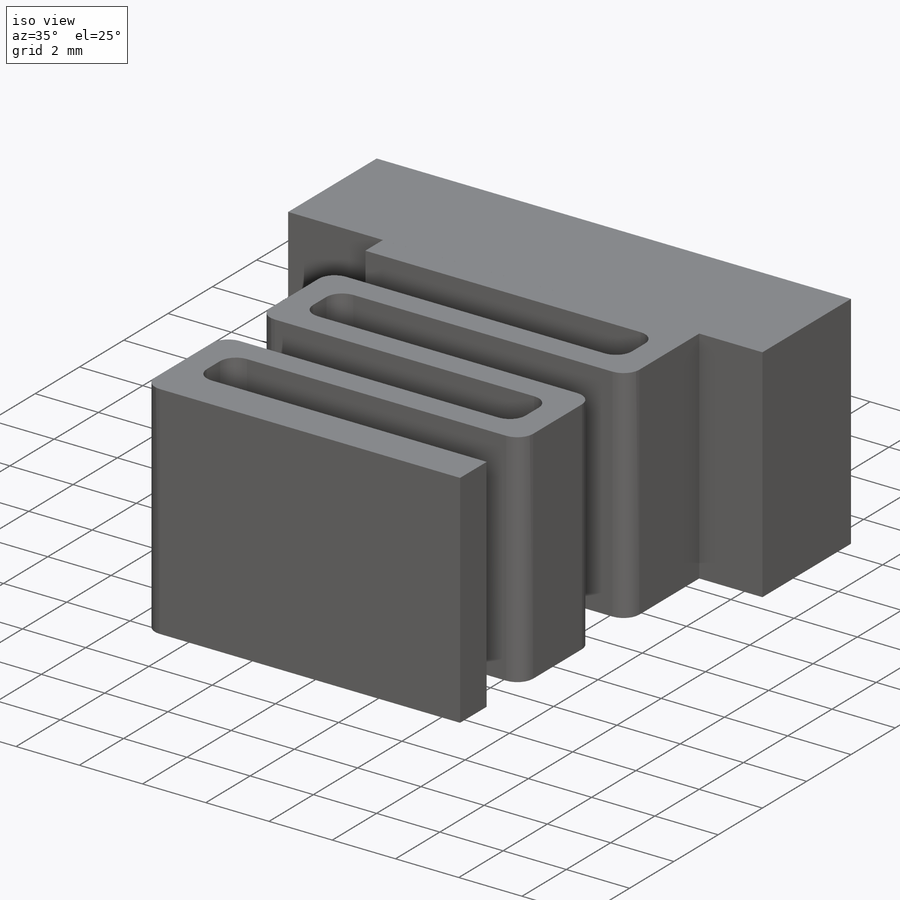
[diagram: iso view]
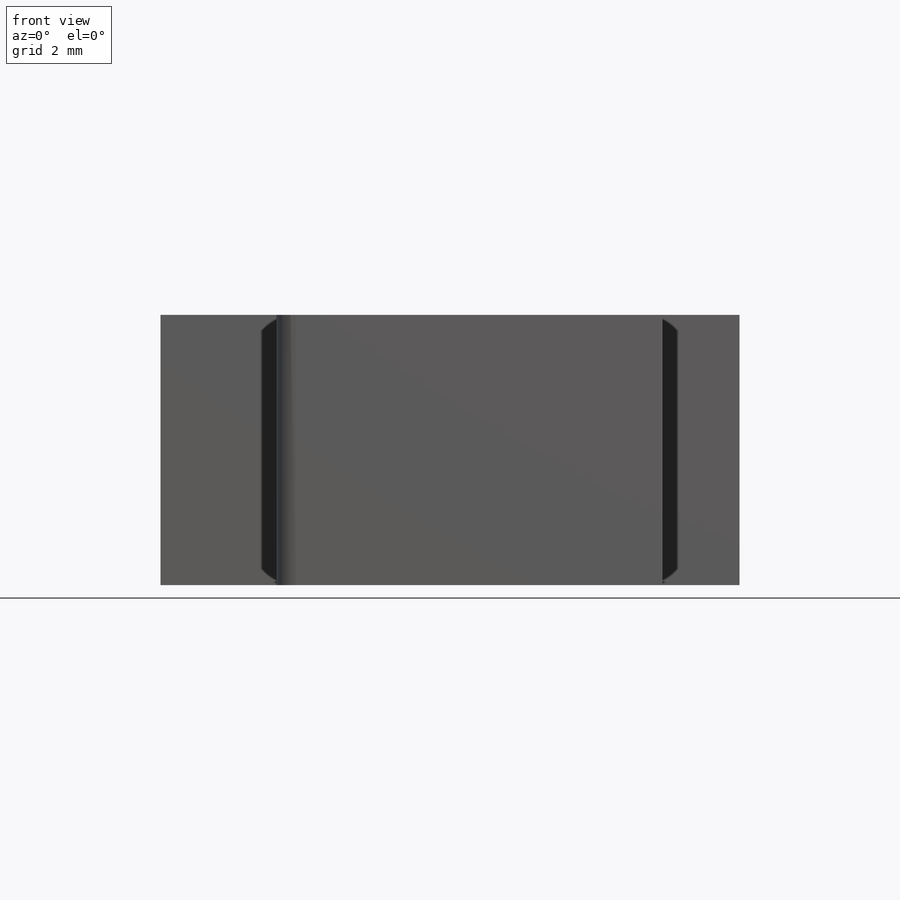
[diagram: front view]
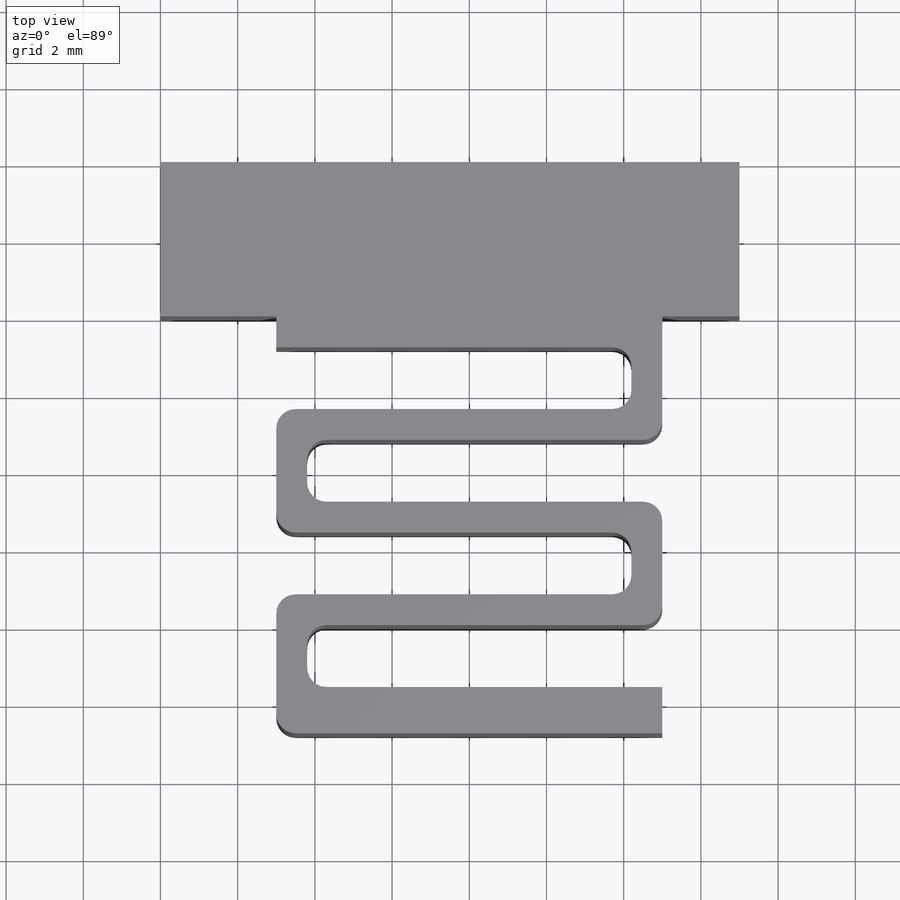
[diagram: top view]
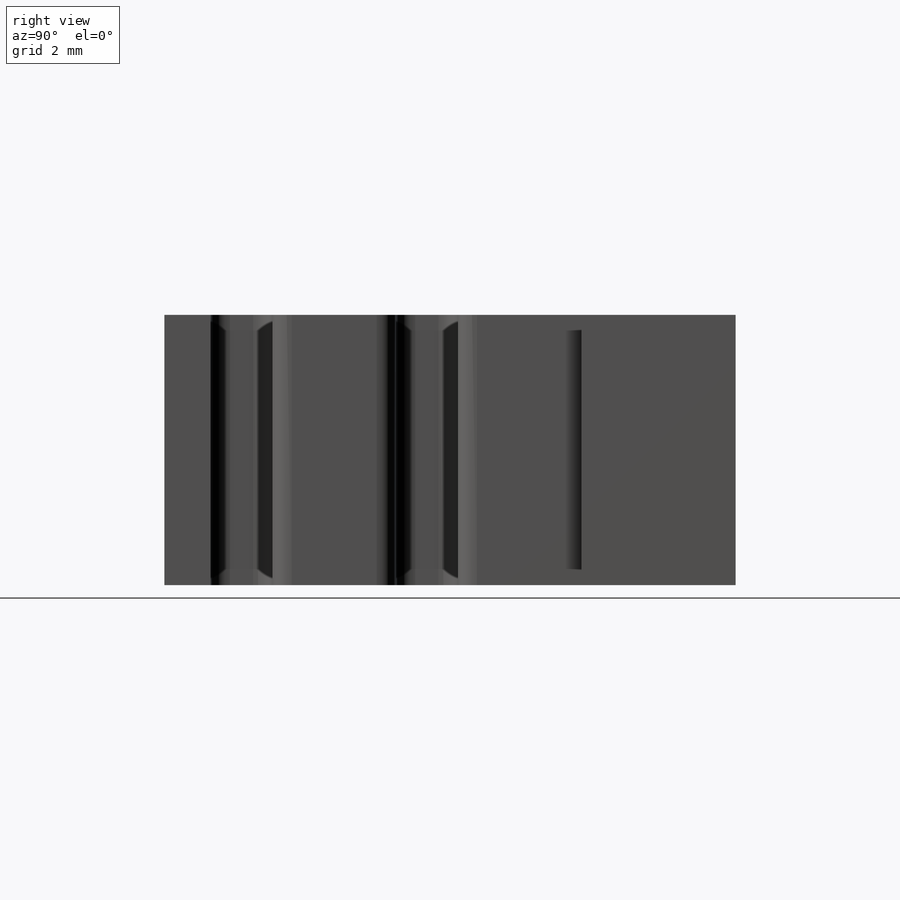
[diagram: right view]
SOLIDWORKS PART (.sldprt)
format: sldprt  version: not decoded by parser v0  size: 252,416 bytes
history: native  units: mm
features: sketch x2, extrude x2, material x1, fillet x1 (+12 scaffold rows collapsed)
feature tree (18):
  scaffold x12  (default folders/planes/origin — collapsed)
  material  "재질 <지정안함>"
  sketch  "스케치1"  dims[D1=15.0mm D2=7.0mm D3=3.5mm D4=48.0mm]
  extrude  "보스-돌출1"  Depth=4mm
  sketch  "스케치2"  dims[c1.D8=~1.294535mm c1.D1=40.0mm c1.D2=40.0mm c1.D3=0.8mm c1.D4=1.5mm c1.D5=1.5mm c1.D6=1.0mm c1.D7=1.0mm c2.D4=5.0mm c2.D5=5.0mm c2.D6=1.6mm c2.D7=0.8mm c2.D8=1.6mm c2.D9=0.8mm c2.D10=0.8mm c2.D11=0.8mm c2.D12=1.6mm c2.D13=0.8mm c2.D14=1.6mm c2.D15=1.2mm]
  extrude  "보스-돌출2"  Depth=7mm
  fillet  "필렛1"  Radius=0.5mm
decode coverage: 5 of 5 modeling features carry decoded parameters
note: ~ marks probable driven/reference dimensions
note: suppression state not decoded; provenance and decode notes live in map.json
